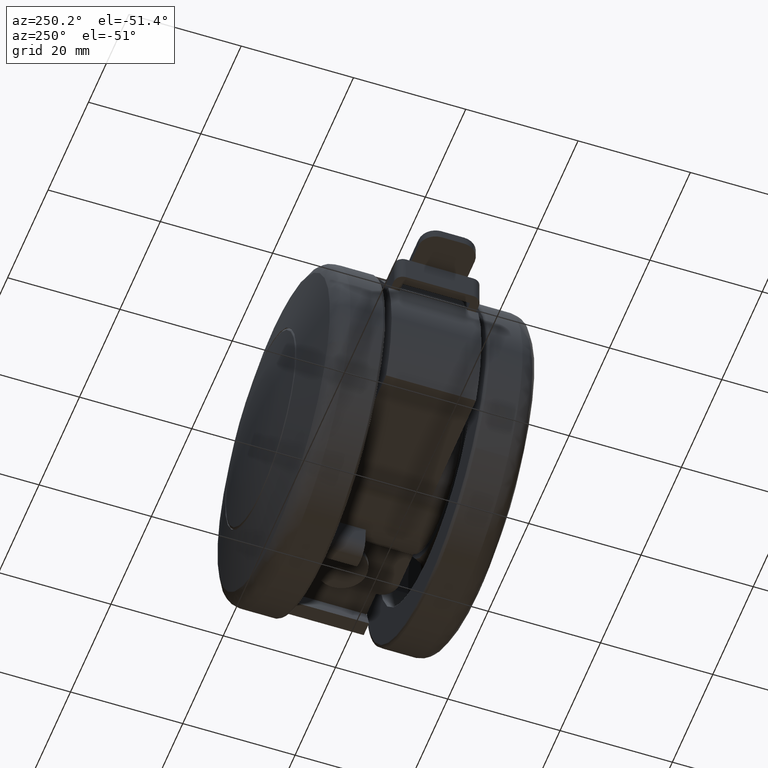
[diagram: clean part render]
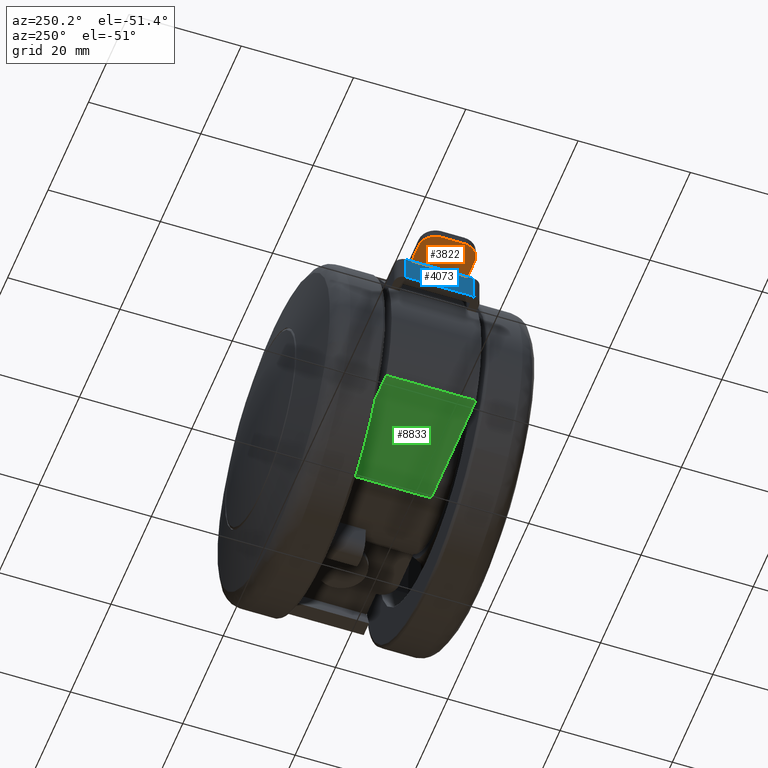
[diagram: same view with three faces highlighted in distinct colors, each labeled with its STEP entity id]
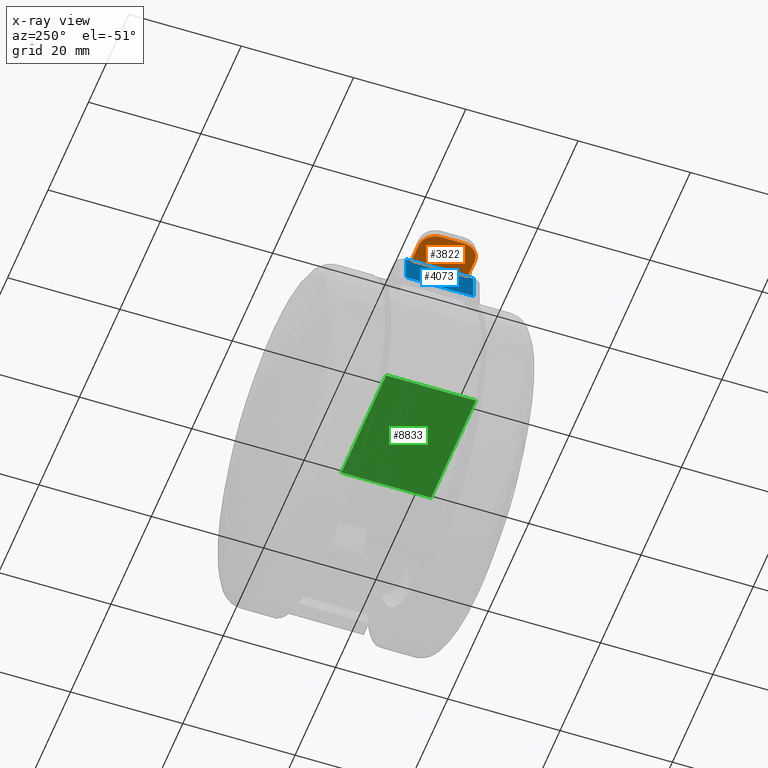
[diagram: x-ray of the same camera — body ghosted, the three highlighted faces saturated]
A machine part, auxiliary view with three faces highlighted in distinct colors.
The next image is the same camera in x-ray (body ghosted, the three faces saturated) — at least one of them is partly hidden behind the body in this view.
Their STEP definitions:

[orange] entity #3822 — the highlighted face is a freeform B-spline surface patch.
#3610=CARTESIAN_POINT('',(-38.0,-2.0,14.500000000000000));
#3611=VERTEX_POINT('',#3610);
#3617=CARTESIAN_POINT('',(-35.0,-5.0,14.500000000000000));
#3618=VERTEX_POINT('',#3617);
#3619=CARTESIAN_POINT('',(-35.0,-5.0,14.500000000000000));
#3620=CARTESIAN_POINT('',(-38.0,-5.000000000000001,14.500000000000000));
#3621=CARTESIAN_POINT('',(-38.000000000000007,-2.0,14.500000000000000));
#3629=(BOUNDED_CURVE()B_SPLINE_CURVE(2,(#3619,#3620,#3621),.UNSPECIFIED.,.F.,.U.)CURVE()GEOMETRIC_REPRESENTATION_ITEM()QUASI_UNIFORM_CURVE()RATIONAL_B_SPLINE_CURVE((1.0,0.707106781186548,1.0))REPRESENTATION_ITEM(''));
#3630=EDGE_CURVE('',#3618,#3611,#3629,.T.);
#3671=CARTESIAN_POINT('',(-35.0,5.0,14.500000000000000));
#3672=VERTEX_POINT('',#3671);
#3678=CARTESIAN_POINT('',(-38.0,2.0,14.500000000000000));
#3679=VERTEX_POINT('',#3678);
#3680=CARTESIAN_POINT('',(-38.000000000000007,2.0,14.500000000000000));
#3681=CARTESIAN_POINT('',(-38.0,5.000000000000001,14.500000000000000));
#3682=CARTESIAN_POINT('',(-35.0,5.0,14.500000000000000));
#3690=(BOUNDED_CURVE()B_SPLINE_CURVE(2,(#3680,#3681,#3682),.UNSPECIFIED.,.F.,.U.)CURVE()GEOMETRIC_REPRESENTATION_ITEM()QUASI_UNIFORM_CURVE()RATIONAL_B_SPLINE_CURVE((1.0,0.707106781186548,1.0))REPRESENTATION_ITEM(''));
#3691=EDGE_CURVE('',#3679,#3672,#3690,.T.);
#3706=CARTESIAN_POINT('',(-31.500000000000000,5.0,14.500000000000000));
#3707=VERTEX_POINT('',#3706);
#3708=CARTESIAN_POINT('',(-35.0,5.0,14.500000000000000));
#3709=CARTESIAN_POINT('',(-31.500000000000000,5.0,14.500000000000000));
#3710=QUASI_UNIFORM_CURVE('',1,(#3708,#3709),.UNSPECIFIED.,.F.,.U.);
#3711=EDGE_CURVE('',#3672,#3707,#3710,.T.);
#3764=CARTESIAN_POINT('',(-31.500000000000000,-5.0,14.500000000000000));
#3765=VERTEX_POINT('',#3764);
#3766=CARTESIAN_POINT('',(-35.0,-5.0,14.500000000000000));
#3767=CARTESIAN_POINT('',(-31.500000000000000,-5.0,14.500000000000000));
#3768=QUASI_UNIFORM_CURVE('',1,(#3766,#3767),.UNSPECIFIED.,.F.,.U.);
#3769=EDGE_CURVE('',#3618,#3765,#3768,.T.);
#3801=CARTESIAN_POINT('',(-38.324674987401742,-5.499499980618059,14.500000000000000));
#3802=CARTESIAN_POINT('',(-31.175324838254671,-5.499499980618059,14.500000000000000));
#3803=CARTESIAN_POINT('',(-38.324674987401742,5.499500248838960,14.500000000000000));
#3804=CARTESIAN_POINT('',(-31.175324838254671,5.499500248838960,14.500000000000000));
#3805=B_SPLINE_SURFACE_WITH_KNOTS('',1,1,((#3801,#3803),(#3802,#3804)),.UNSPECIFIED.,.F.,.F.,.U.,(2,2),(2,2),(0.0,7.149350149147065),(0.0,10.999000229457019),.UNSPECIFIED.);
#3806=CARTESIAN_POINT('',(-38.0,-2.0,14.500000000000000));
#3807=CARTESIAN_POINT('',(-38.0,2.0,14.500000000000000));
#3808=QUASI_UNIFORM_CURVE('',1,(#3806,#3807),.UNSPECIFIED.,.F.,.U.);
#3809=EDGE_CURVE('',#3611,#3679,#3808,.T.);
#3810=ORIENTED_EDGE('',*,*,#3809,.T.);
#3811=ORIENTED_EDGE('',*,*,#3691,.T.);
#3812=ORIENTED_EDGE('',*,*,#3711,.T.);
#3813=CARTESIAN_POINT('',(-31.500000000000000,-5.0,14.500000000000000));
#3814=CARTESIAN_POINT('',(-31.500000000000000,5.0,14.500000000000000));
#3815=QUASI_UNIFORM_CURVE('',1,(#3813,#3814),.UNSPECIFIED.,.F.,.U.);
#3816=EDGE_CURVE('',#3765,#3707,#3815,.T.);
#3817=ORIENTED_EDGE('',*,*,#3816,.F.);
#3818=ORIENTED_EDGE('',*,*,#3769,.F.);
#3819=ORIENTED_EDGE('',*,*,#3630,.T.);
#3820=EDGE_LOOP('',(#3810,#3811,#3812,#3817,#3818,#3819));
#3821=FACE_OUTER_BOUND('',#3820,.T.);
#3822=ADVANCED_FACE('',(#3821),#3805,.F.);

[blue] entity #4073 — the highlighted face is a freeform B-spline surface patch.
#3706=CARTESIAN_POINT('',(-31.500000000000000,5.0,14.500000000000000));
#3707=VERTEX_POINT('',#3706);
#3764=CARTESIAN_POINT('',(-31.500000000000000,-5.0,14.500000000000000));
#3765=VERTEX_POINT('',#3764);
#3813=CARTESIAN_POINT('',(-31.500000000000000,-5.0,14.500000000000000));
#3814=CARTESIAN_POINT('',(-31.500000000000000,5.0,14.500000000000000));
#3815=QUASI_UNIFORM_CURVE('',1,(#3813,#3814),.UNSPECIFIED.,.F.,.U.);
#3816=EDGE_CURVE('',#3765,#3707,#3815,.T.);
#3898=CARTESIAN_POINT('',(-31.500000000000000,-6.0,9.750000000000199));
#3899=VERTEX_POINT('',#3898);
#3920=CARTESIAN_POINT('',(-31.500000000000000,-6.0,14.500000000000000));
#3921=VERTEX_POINT('',#3920);
#3935=CARTESIAN_POINT('',(-31.500000000000000,-6.0,9.750000000000199));
#3936=CARTESIAN_POINT('',(-31.500000000000000,-6.0,14.500000000000000));
#3937=QUASI_UNIFORM_CURVE('',1,(#3935,#3936),.UNSPECIFIED.,.F.,.U.);
#3938=EDGE_CURVE('',#3899,#3921,#3937,.T.);
#3957=CARTESIAN_POINT('',(-31.500000000000000,6.0,9.750000000000199));
#3958=VERTEX_POINT('',#3957);
#3974=CARTESIAN_POINT('',(-31.500000000000000,6.0,14.500000000000000));
#3975=VERTEX_POINT('',#3974);
#3976=CARTESIAN_POINT('',(-31.500000000000000,6.0,14.500000000000000));
#3977=CARTESIAN_POINT('',(-31.500000000000000,6.0,9.750000000000199));
#3978=QUASI_UNIFORM_CURVE('',1,(#3976,#3977),.UNSPECIFIED.,.F.,.U.);
#3979=EDGE_CURVE('',#3975,#3958,#3978,.T.);
#4048=CARTESIAN_POINT('',(-31.500000000000000,-6.599399976741671,9.512737509206630));
#4049=CARTESIAN_POINT('',(-31.500000000000000,-6.599399976741671,14.737262618198500));
#4050=CARTESIAN_POINT('',(-31.500000000000000,6.599400298606753,9.512737509206630));
#4051=CARTESIAN_POINT('',(-31.500000000000000,6.599400298606753,14.737262618198500));
#4052=B_SPLINE_SURFACE_WITH_KNOTS('',1,1,((#4048,#4050),(#4049,#4051)),.UNSPECIFIED.,.F.,.F.,.U.,(2,2),(2,2),(0.0,5.224525108991868),(0.0,13.198800275348420),.UNSPECIFIED.);
#4053=CARTESIAN_POINT('',(-31.500000000000000,-6.0,14.500000000000000));
#4054=CARTESIAN_POINT('',(-31.500000000000000,-5.0,14.500000000000000));
#4055=QUASI_UNIFORM_CURVE('',1,(#4053,#4054),.UNSPECIFIED.,.F.,.U.);
#4056=EDGE_CURVE('',#3921,#3765,#4055,.T.);
#4057=ORIENTED_EDGE('',*,*,#4056,.T.);
#4058=ORIENTED_EDGE('',*,*,#3816,.T.);
#4059=CARTESIAN_POINT('',(-31.500000000000000,5.0,14.500000000000000));
#4060=CARTESIAN_POINT('',(-31.500000000000000,6.0,14.500000000000000));
#4061=QUASI_UNIFORM_CURVE('',1,(#4059,#4060),.UNSPECIFIED.,.F.,.U.);
#4062=EDGE_CURVE('',#3707,#3975,#4061,.T.);
#4063=ORIENTED_EDGE('',*,*,#4062,.T.);
#4064=ORIENTED_EDGE('',*,*,#3979,.T.);
#4065=CARTESIAN_POINT('',(-31.500000000000000,-6.0,9.750000000000199));
#4066=CARTESIAN_POINT('',(-31.500000000000000,6.0,9.750000000000199));
#4067=QUASI_UNIFORM_CURVE('',1,(#4065,#4066),.UNSPECIFIED.,.F.,.U.);
#4068=EDGE_CURVE('',#3899,#3958,#4067,.T.);
#4069=ORIENTED_EDGE('',*,*,#4068,.F.);
#4070=ORIENTED_EDGE('',*,*,#3938,.T.);
#4071=EDGE_LOOP('',(#4057,#4058,#4063,#4064,#4069,#4070));
#4072=FACE_OUTER_BOUND('',#4071,.T.);
#4073=ADVANCED_FACE('',(#4072),#4052,.T.);

[green] entity #8833 — the highlighted face is a freeform B-spline surface patch.
#8798=CARTESIAN_POINT('',(-3.991490235173391,-8.799199968988885,-12.500000000000000));
#8799=CARTESIAN_POINT('',(-28.379308573809048,-8.799199968988885,-12.500000000000000));
#8800=CARTESIAN_POINT('',(-3.991490235173391,8.799200398142116,-12.500000000000000));
#8801=CARTESIAN_POINT('',(-28.379308573809048,8.799200398142116,-12.500000000000000));
#8802=B_SPLINE_SURFACE_WITH_KNOTS('',1,1,((#8798,#8800),(#8799,#8801)),.UNSPECIFIED.,.F.,.F.,.U.,(2,2),(2,2),(0.0,24.387818338635650),(0.0,17.598400367130999),.UNSPECIFIED.);
#8803=CARTESIAN_POINT('',(-27.271780286589308,7.999999999999789,-12.500000000000000));
#8804=VERTEX_POINT('',#8803);
#8805=CARTESIAN_POINT('',(-5.099019513592780,7.999999999999789,-12.500000000000000));
#8806=VERTEX_POINT('',#8805);
#8807=CARTESIAN_POINT('',(-27.271780286589308,7.999999999999789,-12.500000000000000));
#8808=CARTESIAN_POINT('',(-5.099019513592780,7.999999999999789,-12.500000000000000));
#8809=QUASI_UNIFORM_CURVE('',1,(#8807,#8808),.UNSPECIFIED.,.F.,.U.);
#8810=EDGE_CURVE('',#8804,#8806,#8809,.T.);
#8811=ORIENTED_EDGE('',*,*,#8810,.T.);
#8812=CARTESIAN_POINT('',(-5.099019513592780,-8.0,-12.500000000000000));
#8813=VERTEX_POINT('',#8812);
#8814=CARTESIAN_POINT('',(-5.099019513592780,7.999999999999789,-12.500000000000000));
#8815=CARTESIAN_POINT('',(-5.099019513592780,-8.0,-12.500000000000000));
#8816=QUASI_UNIFORM_CURVE('',1,(#8814,#8815),.UNSPECIFIED.,.F.,.U.);
#8817=EDGE_CURVE('',#8806,#8813,#8816,.T.);
#8818=ORIENTED_EDGE('',*,*,#8817,.T.);
#8819=CARTESIAN_POINT('',(-27.271780286589308,-8.0,-12.500000000000000));
#8820=VERTEX_POINT('',#8819);
#8821=CARTESIAN_POINT('',(-5.099019513592780,-8.0,-12.500000000000000));
#8822=CARTESIAN_POINT('',(-27.271780286589308,-8.0,-12.500000000000000));
#8823=QUASI_UNIFORM_CURVE('',1,(#8821,#8822),.UNSPECIFIED.,.F.,.U.);
#8824=EDGE_CURVE('',#8813,#8820,#8823,.T.);
#8825=ORIENTED_EDGE('',*,*,#8824,.T.);
#8826=CARTESIAN_POINT('',(-27.271780286589308,7.999999999999789,-12.500000000000000));
#8827=CARTESIAN_POINT('',(-27.271780286589308,-8.0,-12.500000000000000));
#8828=QUASI_UNIFORM_CURVE('',1,(#8826,#8827),.UNSPECIFIED.,.F.,.U.);
#8829=EDGE_CURVE('',#8804,#8820,#8828,.T.);
#8830=ORIENTED_EDGE('',*,*,#8829,.F.);
#8831=EDGE_LOOP('',(#8811,#8818,#8825,#8830));
#8832=FACE_OUTER_BOUND('',#8831,.T.);
#8833=ADVANCED_FACE('',(#8832),#8802,.T.);